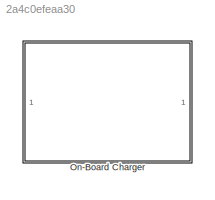
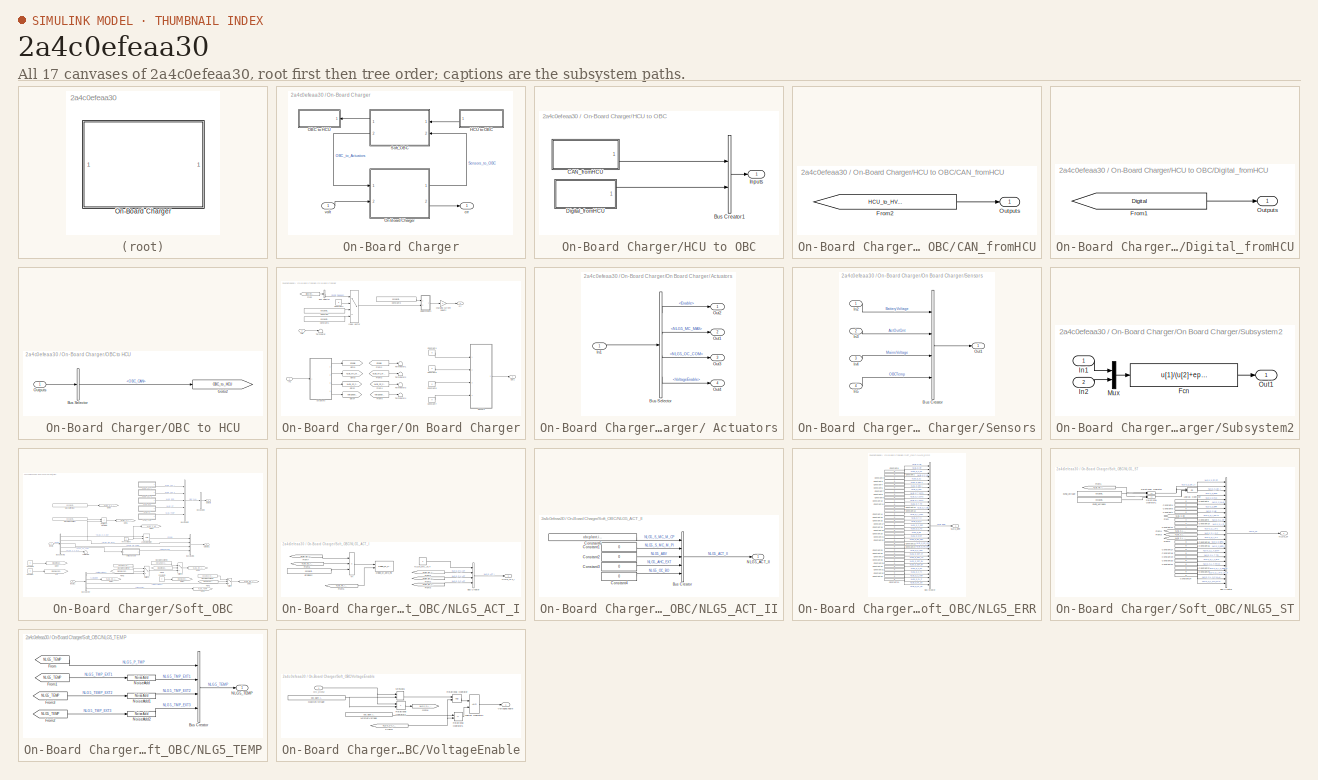
[diagram: thumbnail index - all 17 canvases of the model, root first then tree order]
MODEL slx_2a4c0efeaa30
KIND library
CONFIG AbsTol = auto
CONFIG EnableMultiTasking = off
CONFIG FixedStep = auto
CONFIG MaxStep = auto
CONFIG MinStep = auto
CONFIG RelTol = 1e-3
CONFIG SampleTimeConstraint = Unconstrained
CONFIG Solver = VariableStepAuto
CONFIG SolverName = VariableStepAuto
CONFIG StartTime = 0.0
CONFIG StopTime = 10.0
BLOCK [SubSystem] On-Board Charger
  Ports = [1, 1]
  RequestExecContextInheritance = off
  Variant = off
BLOCK [SubSystem] On-Board Charger/HCU to OBC
  Ports = [0, 1]
  RequestExecContextInheritance = off
  Variant = off
BLOCK [BusCreator] On-Board Charger/HCU to OBC/Bus Creator1
  DisplayOption = bar
  InheritFromInputs = on
  Inputs = 2
  Ports = [2, 1]
BLOCK [SubSystem] On-Board Charger/HCU to OBC/CAN_fromHCU
  Ports = [0, 1]
  RequestExecContextInheritance = off
  Variant = off
BLOCK [From] On-Board Charger/HCU to OBC/CAN_fromHCU/From2
  GotoTag = HCU_to_HV_CAN
  TagVisibility = global
BLOCK [Outport] On-Board Charger/HCU to OBC/CAN_fromHCU/Outputs
  IconDisplay = Port number
BLOCK [SubSystem] On-Board Charger/HCU to OBC/Digital_fromHCU
  Ports = [0, 1]
  RequestExecContextInheritance = off
  Variant = off
BLOCK [From] On-Board Charger/HCU to OBC/Digital_fromHCU/From1
  GotoTag = Digital
  TagVisibility = global
BLOCK [Outport] On-Board Charger/HCU to OBC/Digital_fromHCU/Outputs
  IconDisplay = Port number
BLOCK [Outport] On-Board Charger/HCU to OBC/Inputs
  IconDisplay = Port number
BLOCK [SubSystem] On-Board Charger/OBC to HCU
  Ports = [1]
  RequestExecContextInheritance = off
  Variant = off
BLOCK [BusSelector] On-Board Charger/OBC to HCU/Bus Selector
  OutputAsBus = off
  OutputSignals = OBC_CAN
  Ports = [1, 1]
BLOCK [Goto] On-Board Charger/OBC to HCU/Goto2
  GotoTag = OBC_to_HCU
  TagVisibility = global
BLOCK [Inport] On-Board Charger/OBC to HCU/Outputs
  IconDisplay = Port number
BLOCK [SubSystem] On-Board Charger/On Board Charger
  Ports = [2, 2]
  RequestExecContextInheritance = off
  Variant = off
BLOCK [SubSystem] On-Board Charger/On Board Charger/ Actuators
  Ports = [1, 4]
  RequestExecContextInheritance = off
  Variant = off
BLOCK [BusSelector] On-Board Charger/On Board Charger/ Actuators/Bus Selector
  OutputAsBus = off
  OutputSignals = Enable,NLG5_MC_MAX,NLG5_OC_COM,VoltageEnable
  Ports = [1, 4]
BLOCK [Inport] On-Board Charger/On Board Charger/ Actuators/In1
  IconDisplay = Port number
BLOCK [Outport] On-Board Charger/On Board Charger/ Actuators/Out1
  IconDisplay = Port number
  Port = 2
BLOCK [Outport] On-Board Charger/On Board Charger/ Actuators/Out2
  IconDisplay = Port number
BLOCK [Outport] On-Board Charger/On Board Charger/ Actuators/Out3
  IconDisplay = Port number
  Port = 3
BLOCK [Outport] On-Board Charger/On Board Charger/ Actuators/Out4
  IconDisplay = Port number
  Port = 4
BLOCK [BusSelector] On-Board Charger/On Board Charger/Bus Selector
  OutputAsBus = off
  OutputSignals = EVSE_Plugged
  Ports = [1, 1]
BLOCK [Constant] On-Board Charger/On Board Charger/Constant
  Value = obc.plant.init.Level1ChargerVoltage
BLOCK [Constant] On-Board Charger/On Board Charger/Constant1
  Value = obc.plant.init.Level2ChargerVoltage
BLOCK [Constant] On-Board Charger/On Board Charger/Constant2
  Value = 0
BLOCK [Constant] On-Board Charger/On Board Charger/Constant3
  Value = obc.plant.init.OutputPower
BLOCK [Constant] On-Board Charger/On Board Charger/Constant4
  Value = 0
BLOCK [Constant] On-Board Charger/On Board Charger/Constant5
  Value = 0
BLOCK [Constant] On-Board Charger/On Board Charger/Constant6
  Value = 0
BLOCK [Constant] On-Board Charger/On Board Charger/Constant7
  Value = 0
BLOCK [From] On-Board Charger/On Board Charger/From
  GotoTag = Driver_Request
  TagVisibility = global
BLOCK [From] On-Board Charger/On Board Charger/From2
  GotoTag = Enable
  TagVisibility = global
BLOCK [From] On-Board Charger/On Board Charger/From3
  GotoTag = NLG5_MC_MAX
  TagVisibility = global
BLOCK [From] On-Board Charger/On Board Charger/From4
  GotoTag = NLG5_OC_COM
  TagVisibility = global
BLOCK [From] On-Board Charger/On Board Charger/From5
  GotoTag = VoltageEnable
  TagVisibility = global
BLOCK [Goto] On-Board Charger/On Board Charger/Goto1
  GotoTag = Enable
  TagVisibility = global
BLOCK [Goto] On-Board Charger/On Board Charger/Goto2
  GotoTag = NLG5_OC_COM
  TagVisibility = global
BLOCK [Goto] On-Board Charger/On Board Charger/Goto3
  GotoTag = NLG5_MC_MAX
  TagVisibility = global
BLOCK [Goto] On-Board Charger/On Board Charger/Goto4
  GotoTag = VoltageEnable
  TagVisibility = global
BLOCK [Inport] On-Board Charger/On Board Charger/In1 
  IconDisplay = Port number
BLOCK [MultiPortSwitch] On-Board Charger/On Board Charger/Index Vector
  DataPortOrder = Zero-based contiguous
  InputSameDT = off
  Ports = [4, 1]
  SaturateOnIntegerOverflow = off
  zeroidx = on
BLOCK [Outport] On-Board Charger/On Board Charger/Out1
  IconDisplay = Port number
BLOCK [SubSystem] On-Board Charger/On Board Charger/Sensors
  Ports = [4, 1]
  RequestExecContextInheritance = off
  Variant = off
BLOCK [BusCreator] On-Board Charger/On Board Charger/Sensors/Bus Creator
  DisplayOption = bar
  InheritFromInputs = on
  Inputs = 4
  Ports = [4, 1]
BLOCK [Inport] On-Board Charger/On Board Charger/Sensors/In2
  IconDisplay = Port number
BLOCK [Inport] On-Board Charger/On Board Charger/Sensors/In3
  IconDisplay = Port number
  Port = 2
BLOCK [Inport] On-Board Charger/On Board Charger/Sensors/In4
  IconDisplay = Port number
  Port = 3
BLOCK [Inport] On-Board Charger/On Board Charger/Sensors/In5
  IconDisplay = Port number
  Port = 4
BLOCK [Outport] On-Board Charger/On Board Charger/Sensors/Out1
  IconDisplay = Port number
BLOCK [SubSystem] On-Board Charger/On Board Charger/Subsystem2
  Ports = [2, 1]
  RequestExecContextInheritance = off
  Variant = off
BLOCK [Fcn] On-Board Charger/On Board Charger/Subsystem2/Fcn
  Expr = u[1]/(u[2]+eps)*(u[2]!=0)
BLOCK [Inport] On-Board Charger/On Board Charger/Subsystem2/In1
  IconDisplay = Port number
BLOCK [Inport] On-Board Charger/On Board Charger/Subsystem2/In2
  IconDisplay = Port number
  Port = 2
BLOCK [Mux] On-Board Charger/On Board Charger/Subsystem2/Mux
  DisplayOption = bar
  Inputs = 2
  Ports = [2, 1]
BLOCK [Outport] On-Board Charger/On Board Charger/Subsystem2/Out1
  IconDisplay = Port number
BLOCK [Terminator] On-Board Charger/On Board Charger/Terminator
BLOCK [Terminator] On-Board Charger/On Board Charger/Terminator1
BLOCK [Terminator] On-Board Charger/On Board Charger/Terminator2
BLOCK [Terminator] On-Board Charger/On Board Charger/Terminator3
BLOCK [Terminator] On-Board Charger/On Board Charger/Terminator4
BLOCK [Gain] On-Board Charger/On Board Charger/charging current polarity 
  Gain = -1
  OutDataTypeStr = Inherit: Inherit via internal rule
  ParamDataTypeStr = Inherit: Inherit via internal rule
  SaturateOnIntegerOverflow = off
BLOCK [Outport] On-Board Charger/On Board Charger/crr
  IconDisplay = Port number
  Port = 2
BLOCK [Inport] On-Board Charger/On Board Charger/volt
  IconDisplay = Port number
  Port = 2
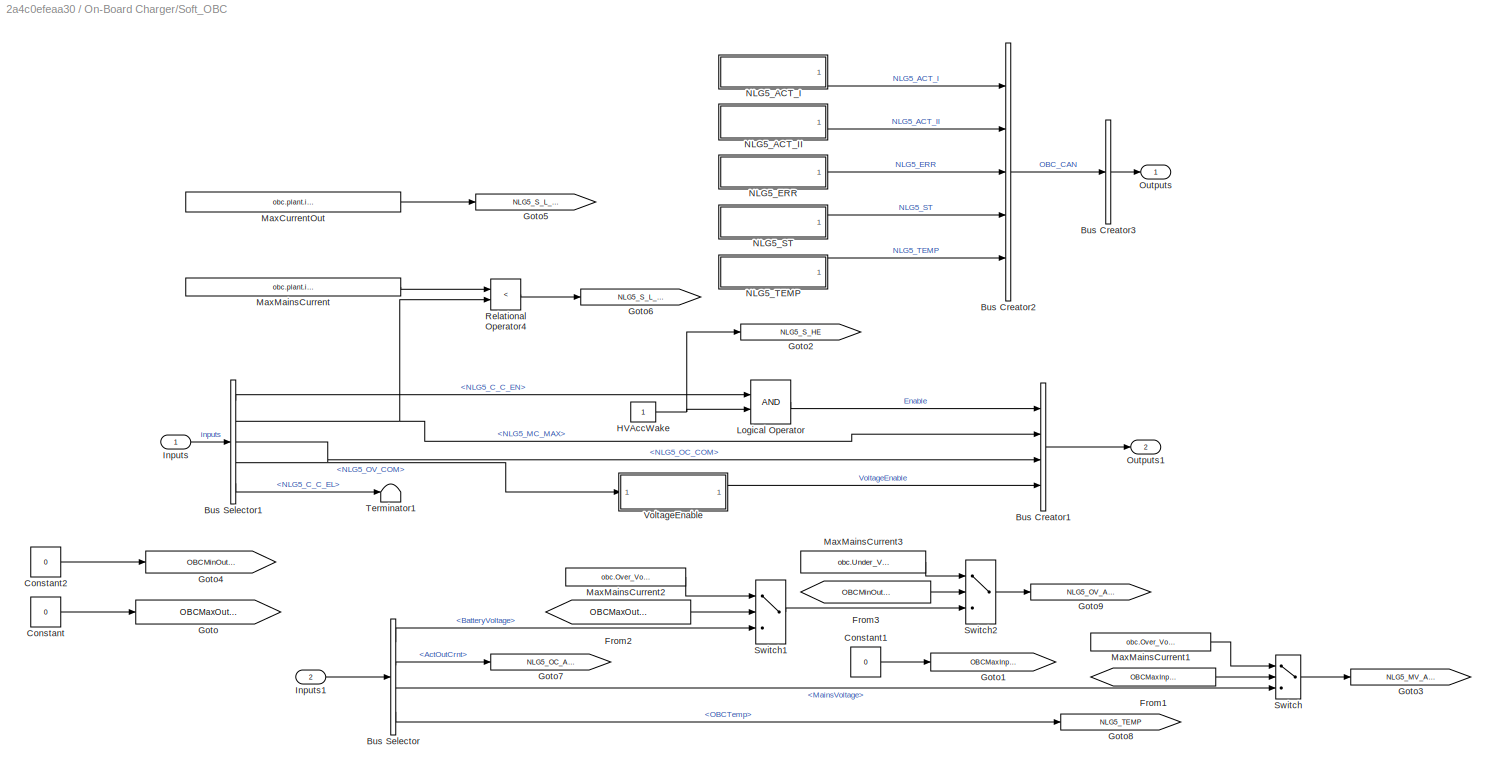
BLOCK [SubSystem] On-Board Charger/Soft_OBC
  Ports = [2, 2]
  RequestExecContextInheritance = off
  Variant = off
BLOCK [BusCreator] On-Board Charger/Soft_OBC/Bus Creator1
  DisplayOption = bar
  InheritFromInputs = on
  Inputs = 4
  Ports = [4, 1]
BLOCK [BusCreator] On-Board Charger/Soft_OBC/Bus Creator2
  DisplayOption = bar
  InheritFromInputs = on
  Inputs = 5
  Ports = [5, 1]
BLOCK [BusCreator] On-Board Charger/Soft_OBC/Bus Creator3
  DisplayOption = bar
  InheritFromInputs = on
  Inputs = 1
  Ports = [1, 1]
BLOCK [BusSelector] On-Board Charger/Soft_OBC/Bus Selector
  OutputAsBus = off
  OutputSignals = BatteryVoltage,ActOutCrnt,MainsVoltage,OBCTemp
  Ports = [1, 4]
BLOCK [BusSelector] On-Board Charger/Soft_OBC/Bus Selector1
  OutputAsBus = off
  OutputSignals = to HV_CAN.NLG5_CTL.NLG5_C_C_EN,to HV_CAN.NLG5_CTL.NLG5_MC_MAX,to HV_CAN.NLG5_CTL.NLG5_OC_COM,to HV_CAN.NLG5_CTL.NLG5_OV_COM,to HV_CAN.NLG5_CTL.NLG5_C_C_EL
  Ports = [1, 5]
BLOCK [Constant] On-Board Charger/Soft_OBC/Constant
  Value = 0
BLOCK [Constant] On-Board Charger/Soft_OBC/Constant1
  Value = 0
BLOCK [Constant] On-Board Charger/Soft_OBC/Constant2
  Value = 0
BLOCK [From] On-Board Charger/Soft_OBC/From1
  GotoTag = OBCMaxInpVlt_Fault
BLOCK [From] On-Board Charger/Soft_OBC/From2
  GotoTag = OBCMaxOutVolt_Fault
  TagVisibility = global
BLOCK [From] On-Board Charger/Soft_OBC/From3
  GotoTag = OBCMinOutVolt_Fault
BLOCK [Goto] On-Board Charger/Soft_OBC/Goto
  GotoTag = OBCMaxOutVolt_Fault
  TagVisibility = global
BLOCK [Goto] On-Board Charger/Soft_OBC/Goto1
  GotoTag = OBCMaxInpVlt_Fault
BLOCK [Goto] On-Board Charger/Soft_OBC/Goto2
  GotoTag = NLG5_S_HE
  TagVisibility = global
BLOCK [Goto] On-Board Charger/Soft_OBC/Goto3
  GotoTag = NLG5_MV_ACT
  TagVisibility = global
BLOCK [Goto] On-Board Charger/Soft_OBC/Goto4
  GotoTag = OBCMinOutVolt_Fault
BLOCK [Goto] On-Board Charger/Soft_OBC/Goto5
  GotoTag = NLG5_S_L_OC
  TagVisibility = global
BLOCK [Goto] On-Board Charger/Soft_OBC/Goto6
  GotoTag = NLG5_S_L_MC
  TagVisibility = global
BLOCK [Goto] On-Board Charger/Soft_OBC/Goto7
  GotoTag = NLG5_OC_ACT
  TagVisibility = global
BLOCK [Goto] On-Board Charger/Soft_OBC/Goto8
  GotoTag = NLG5_TEMP
  TagVisibility = global
BLOCK [Goto] On-Board Charger/Soft_OBC/Goto9
  GotoTag = NLG5_OV_ACT
  TagVisibility = global
BLOCK [Constant] On-Board Charger/Soft_OBC/HVAccWake
BLOCK [Inport] On-Board Charger/Soft_OBC/Inputs
  IconDisplay = Port number
BLOCK [Inport] On-Board Charger/Soft_OBC/Inputs1
  IconDisplay = Port number
  Port = 2
BLOCK [Logic] On-Board Charger/Soft_OBC/Logical Operator
  AllPortsSameDT = off
  OutDataTypeStr = boolean
  Ports = [2, 1]
BLOCK [Constant] On-Board Charger/Soft_OBC/MaxCurrentOut
  Value = obc.plant.init.Maximum_Current_Out
BLOCK [Constant] On-Board Charger/Soft_OBC/MaxMainsCurrent
  Value = obc.plant.init.Maximum_Mains_Current
BLOCK [Constant] On-Board Charger/Soft_OBC/MaxMainsCurrent1
  Value = obc.Over_Voltage_In
BLOCK [Constant] On-Board Charger/Soft_OBC/MaxMainsCurrent2
  Value = obc.Over_Voltage_Out
BLOCK [Constant] On-Board Charger/Soft_OBC/MaxMainsCurrent3
  Value = obc.Under_Voltage_Out
BLOCK [SubSystem] On-Board Charger/Soft_OBC/NLG5_ACT_I
  Ports = [0, 1]
  RequestExecContextInheritance = off
  Variant = off
BLOCK [BusCreator] On-Board Charger/Soft_OBC/NLG5_ACT_I/Bus Creator
  DisplayOption = bar
  InheritFromInputs = on
  Inputs = 4
  Ports = [4, 1]
BLOCK [Reference] On-Board Charger/Soft_OBC/NLG5_ACT_I/Divide_by_Zero_Fix  REF=EC2_libraries/Divide_by_Zero_Fix
  Commented = on
  Ports = [2, 1]
  SourceBlock = EC2_libraries/Divide_by_Zero_Fix
  SourceType = SubSystem
BLOCK [Constant] On-Board Charger/Soft_OBC/NLG5_ACT_I/Efficiency
  Commented = on
  Value = obc.plant.init.avergae_efficiency
BLOCK [From] On-Board Charger/Soft_OBC/NLG5_ACT_I/From1
  GotoTag = NLG5_MV_ACT
  TagVisibility = global
BLOCK [From] On-Board Charger/Soft_OBC/NLG5_ACT_I/From2
  GotoTag = NLG5_OV_ACT
  TagVisibility = global
BLOCK [From] On-Board Charger/Soft_OBC/NLG5_ACT_I/From3
  GotoTag = NLG5_OC_ACT
  TagVisibility = global
BLOCK [From] On-Board Charger/Soft_OBC/NLG5_ACT_I/From5
  Commented = on
  GotoTag = NLG5_MV_ACT
  TagVisibility = global
BLOCK [From] On-Board Charger/Soft_OBC/NLG5_ACT_I/From6
  Commented = on
  GotoTag = NLG5_OC_ACT
  TagVisibility = global
BLOCK [From] On-Board Charger/Soft_OBC/NLG5_ACT_I/From7
  Commented = on
  GotoTag = NLG5_OV_ACT
  TagVisibility = global
BLOCK [Outport] On-Board Charger/Soft_OBC/NLG5_ACT_I/NLG5_ACT_I
  IconDisplay = Port number
BLOCK [Constant] On-Board Charger/Soft_OBC/NLG5_ACT_I/NLG5_MC_ACT
BLOCK [Product] On-Board Charger/Soft_OBC/NLG5_ACT_I/V*I
  Commented = on
  InputSameDT = off
  Inputs = **/
  OutDataTypeStr = Inherit: Inherit via internal rule
  Ports = [3, 1]
  SaturateOnIntegerOverflow = off
BLOCK [SubSystem] On-Board Charger/Soft_OBC/NLG5_ACT_II
  Ports = [0, 1]
  RequestExecContextInheritance = off
  Variant = off
BLOCK [BusCreator] On-Board Charger/Soft_OBC/NLG5_ACT_II/Bus Creator
  DisplayOption = bar
  InheritFromInputs = on
  Inputs = 5
  Ports = [5, 1]
BLOCK [Constant] On-Board Charger/Soft_OBC/NLG5_ACT_II/Constant1
  Value = 0
BLOCK [Constant] On-Board Charger/Soft_OBC/NLG5_ACT_II/Constant2
  Value = 0
BLOCK [Constant] On-Board Charger/Soft_OBC/NLG5_ACT_II/Constant3
  Value = 0
BLOCK [Constant] On-Board Charger/Soft_OBC/NLG5_ACT_II/Constant4
  Value = 0
BLOCK [Constant] On-Board Charger/Soft_OBC/NLG5_ACT_II/Constant6
  Value = obc.plant.init.Maximum_Mains_Current
BLOCK [Outport] On-Board Charger/Soft_OBC/NLG5_ACT_II/NLG5_ACT_II
  IconDisplay = Port number
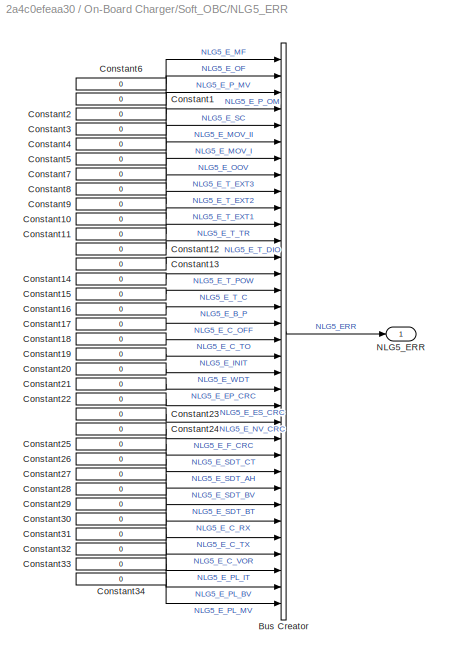
BLOCK [SubSystem] On-Board Charger/Soft_OBC/NLG5_ERR
  Ports = [0, 1]
  RequestExecContextInheritance = off
  Variant = off
BLOCK [BusCreator] On-Board Charger/Soft_OBC/NLG5_ERR/Bus Creator
  DisplayOption = bar
  InheritFromInputs = on
  Inputs = 34
  Ports = [34, 1]
BLOCK [Constant] On-Board Charger/Soft_OBC/NLG5_ERR/Constant1
  Value = 0
BLOCK [Constant] On-Board Charger/Soft_OBC/NLG5_ERR/Constant10
  Value = 0
BLOCK [Constant] On-Board Charger/Soft_OBC/NLG5_ERR/Constant11
  Value = 0
BLOCK [Constant] On-Board Charger/Soft_OBC/NLG5_ERR/Constant12
  Value = 0
BLOCK [Constant] On-Board Charger/Soft_OBC/NLG5_ERR/Constant13
  Value = 0
BLOCK [Constant] On-Board Charger/Soft_OBC/NLG5_ERR/Constant14
  Value = 0
BLOCK [Constant] On-Board Charger/Soft_OBC/NLG5_ERR/Constant15
  Value = 0
BLOCK [Constant] On-Board Charger/Soft_OBC/NLG5_ERR/Constant16
  Value = 0
BLOCK [Constant] On-Board Charger/Soft_OBC/NLG5_ERR/Constant17
  Value = 0
BLOCK [Constant] On-Board Charger/Soft_OBC/NLG5_ERR/Constant18
  Value = 0
BLOCK [Constant] On-Board Charger/Soft_OBC/NLG5_ERR/Constant19
  Value = 0
BLOCK [Constant] On-Board Charger/Soft_OBC/NLG5_ERR/Constant2
  Value = 0
BLOCK [Constant] On-Board Charger/Soft_OBC/NLG5_ERR/Constant20
  Value = 0
BLOCK [Constant] On-Board Charger/Soft_OBC/NLG5_ERR/Constant21
  Value = 0
BLOCK [Constant] On-Board Charger/Soft_OBC/NLG5_ERR/Constant22
  Value = 0
BLOCK [Constant] On-Board Charger/Soft_OBC/NLG5_ERR/Constant23
  Value = 0
BLOCK [Constant] On-Board Charger/Soft_OBC/NLG5_ERR/Constant24
  Value = 0
BLOCK [Constant] On-Board Charger/Soft_OBC/NLG5_ERR/Constant25
  Value = 0
BLOCK [Constant] On-Board Charger/Soft_OBC/NLG5_ERR/Constant26
  Value = 0
BLOCK [Constant] On-Board Charger/Soft_OBC/NLG5_ERR/Constant27
  Value = 0
BLOCK [Constant] On-Board Charger/Soft_OBC/NLG5_ERR/Constant28
  Value = 0
BLOCK [Constant] On-Board Charger/Soft_OBC/NLG5_ERR/Constant29
  Value = 0
BLOCK [Constant] On-Board Charger/Soft_OBC/NLG5_ERR/Constant3
  Value = 0
BLOCK [Constant] On-Board Charger/Soft_OBC/NLG5_ERR/Constant30
  Value = 0
BLOCK [Constant] On-Board Charger/Soft_OBC/NLG5_ERR/Constant31
  Value = 0
BLOCK [Constant] On-Board Charger/Soft_OBC/NLG5_ERR/Constant32
  Value = 0
BLOCK [Constant] On-Board Charger/Soft_OBC/NLG5_ERR/Constant33
  Value = 0
BLOCK [Constant] On-Board Charger/Soft_OBC/NLG5_ERR/Constant34
  Value = 0
BLOCK [Constant] On-Board Charger/Soft_OBC/NLG5_ERR/Constant4
  Value = 0
BLOCK [Constant] On-Board Charger/Soft_OBC/NLG5_ERR/Constant5
  Value = 0
BLOCK [Constant] On-Board Charger/Soft_OBC/NLG5_ERR/Constant6
  Value = 0
BLOCK [Constant] On-Board Charger/Soft_OBC/NLG5_ERR/Constant7
  Value = 0
BLOCK [Constant] On-Board Charger/Soft_OBC/NLG5_ERR/Constant8
  Value = 0
BLOCK [Constant] On-Board Charger/Soft_OBC/NLG5_ERR/Constant9
  Value = 0
BLOCK [Outport] On-Board Charger/Soft_OBC/NLG5_ERR/NLG5_ERR
  IconDisplay = Port number
BLOCK [SubSystem] On-Board Charger/Soft_OBC/NLG5_ST
  Ports = [0, 1]
  RequestExecContextInheritance = off
  Variant = off
BLOCK [BusCreator] On-Board Charger/Soft_OBC/NLG5_ST/Bus Creator
  DisplayOption = bar
  InheritFromInputs = on
  Inputs = 24
  Ports = [24, 1]
BLOCK [Constant] On-Board Charger/Soft_OBC/NLG5_ST/Constant10
BLOCK [Constant] On-Board Charger/Soft_OBC/NLG5_ST/Constant11
BLOCK [Constant] On-Board Charger/Soft_OBC/NLG5_ST/Constant15
  Value = 0
BLOCK [Constant] On-Board Charger/Soft_OBC/NLG5_ST/Constant16
  Value = 0
BLOCK [Constant] On-Board Charger/Soft_OBC/NLG5_ST/Constant17
  Value = 0
BLOCK [Constant] On-Board Charger/Soft_OBC/NLG5_ST/Constant18
  Value = 0
BLOCK [Constant] On-Board Charger/Soft_OBC/NLG5_ST/Constant19
  Value = 0
BLOCK [Constant] On-Board Charger/Soft_OBC/NLG5_ST/Constant20
  Value = 0
BLOCK [Constant] On-Board Charger/Soft_OBC/NLG5_ST/Constant21
  Value = 0
BLOCK [Constant] On-Board Charger/Soft_OBC/NLG5_ST/Constant22
  Value = 0
BLOCK [Constant] On-Board Charger/Soft_OBC/NLG5_ST/Constant23
  Value = 0
BLOCK [Constant] On-Board Charger/Soft_OBC/NLG5_ST/Constant24
  Value = 0
BLOCK [Constant] On-Board Charger/Soft_OBC/NLG5_ST/Constant3
  Value = 0
BLOCK [Constant] On-Board Charger/Soft_OBC/NLG5_ST/Constant4
  Value = 0
BLOCK [Constant] On-Board Charger/Soft_OBC/NLG5_ST/Constant5
  Value = 0
BLOCK [Constant] On-Board Charger/Soft_OBC/NLG5_ST/Constant7
  Value = 0
BLOCK [Constant] On-Board Charger/Soft_OBC/NLG5_ST/Constant9
BLOCK [Constant] On-Board Charger/Soft_OBC/NLG5_ST/EVSE_Voltage
  Value = obc.plant.init.Level2ChargerVoltage
BLOCK [Constant] On-Board Charger/Soft_OBC/NLG5_ST/EVSE_Voltage1
  Value = obc.plant.init.Level1ChargerVoltage
BLOCK [From] On-Board Charger/Soft_OBC/NLG5_ST/From
  GotoTag = NLG5_S_HE
  TagVisibility = global
BLOCK [From] On-Board Charger/Soft_OBC/NLG5_ST/From1
  GotoTag = NLG5_MV_ACT
  TagVisibility = global
BLOCK [From] On-Board Charger/Soft_OBC/NLG5_ST/From2
  GotoTag = NLG5_S_L_OV
  TagVisibility = global
BLOCK [From] On-Board Charger/Soft_OBC/NLG5_ST/From3
  GotoTag = NLG5_S_L_OC
  TagVisibility = global
BLOCK [From] On-Board Charger/Soft_OBC/NLG5_ST/From4
  GotoTag = NLG5_S_L_MC
  TagVisibility = global
BLOCK [Logic] On-Board Charger/Soft_OBC/NLG5_ST/Logical Operator
  AllPortsSameDT = off
  Operator = OR
  OutDataTypeStr = boolean
  Ports = [2, 1]
BLOCK [Outport] On-Board Charger/Soft_OBC/NLG5_ST/NLG5_ST
  IconDisplay = Port number
BLOCK [RelationalOperator] On-Board Charger/Soft_OBC/NLG5_ST/Relational Operator
  InputSameDT = off
  Operator = ==
  OutDataTypeStr = boolean
  Ports = [2, 1]
BLOCK [RelationalOperator] On-Board Charger/Soft_OBC/NLG5_ST/Relational Operator1
  InputSameDT = off
  Operator = ==
  OutDataTypeStr = boolean
  Ports = [2, 1]
BLOCK [SubSystem] On-Board Charger/Soft_OBC/NLG5_TEMP
  Ports = [0, 1]
  RequestExecContextInheritance = off
  Variant = off
BLOCK [BusCreator] On-Board Charger/Soft_OBC/NLG5_TEMP/Bus Creator
  DisplayOption = bar
  InheritFromInputs = on
  Inputs = 4
  Ports = [4, 1]
BLOCK [From] On-Board Charger/Soft_OBC/NLG5_TEMP/From
  GotoTag = NLG5_TEMP
  TagVisibility = global
BLOCK [From] On-Board Charger/Soft_OBC/NLG5_TEMP/From1
  GotoTag = NLG5_TEMP
  TagVisibility = global
BLOCK [From] On-Board Charger/Soft_OBC/NLG5_TEMP/From2
  GotoTag = NLG5_TEMP
  TagVisibility = global
BLOCK [From] On-Board Charger/Soft_OBC/NLG5_TEMP/From3
  GotoTag = NLG5_TEMP
  TagVisibility = global
BLOCK [Outport] On-Board Charger/Soft_OBC/NLG5_TEMP/NLG5_TEMP
  IconDisplay = Port number
BLOCK [Reference] On-Board Charger/Soft_OBC/NLG5_TEMP/NoiseAdd  REF=EC2_libraries/NoiseAdd
  Ports = [1, 1]
  SourceBlock = EC2_libraries/NoiseAdd
BLOCK [Reference] On-Board Charger/Soft_OBC/NLG5_TEMP/NoiseAdd1  REF=EC2_libraries/NoiseAdd
  Ports = [1, 1]
  SourceBlock = EC2_libraries/NoiseAdd
BLOCK [Reference] On-Board Charger/Soft_OBC/NLG5_TEMP/NoiseAdd2  REF=EC2_libraries/NoiseAdd
  Ports = [1, 1]
  SourceBlock = EC2_libraries/NoiseAdd
BLOCK [Outport] On-Board Charger/Soft_OBC/Outputs
  IconDisplay = Port number
BLOCK [Outport] On-Board Charger/Soft_OBC/Outputs1
  IconDisplay = Port number
  Port = 2
BLOCK [RelationalOperator] On-Board Charger/Soft_OBC/Relational Operator4
  InputSameDT = off
  Operator = <
  OutDataTypeStr = boolean
  Ports = [2, 1]
BLOCK [Switch] On-Board Charger/Soft_OBC/Switch
  InputSameDT = off
  SaturateOnIntegerOverflow = off
  Threshold = 1
BLOCK [Switch] On-Board Charger/Soft_OBC/Switch1
  InputSameDT = off
  SaturateOnIntegerOverflow = off
  Threshold = 1
BLOCK [Switch] On-Board Charger/Soft_OBC/Switch2
  InputSameDT = off
  SaturateOnIntegerOverflow = off
  Threshold = 1
BLOCK [Terminator] On-Board Charger/Soft_OBC/Terminator1
BLOCK [SubSystem] On-Board Charger/Soft_OBC/VoltageEnable
  Ports = [1, 1]
  RequestExecContextInheritance = off
  Variant = off
BLOCK [From] On-Board Charger/Soft_OBC/VoltageEnable/From3
  GotoTag = NLG5_OV_ACT
  TagVisibility = global
BLOCK [Goto] On-Board Charger/Soft_OBC/VoltageEnable/Goto4
  GotoTag = NLG5_S_L_OV
  TagVisibility = global
BLOCK [Logic] On-Board Charger/Soft_OBC/VoltageEnable/Logical Operator1
  AllPortsSameDT = off
  OutDataTypeStr = boolean
  Ports = [2, 1]
BLOCK [Constant] On-Board Charger/Soft_OBC/VoltageEnable/MaxOutVoltage
  Value = obc.plant.init.Maximum_Voltage_Out
BLOCK [MinMax] On-Board Charger/Soft_OBC/VoltageEnable/MinMax1
  InputSameDT = off
  Inputs = 2
  Ports = [2, 1]
  SaturateOnIntegerOverflow = off
BLOCK [Constant] On-Board Charger/Soft_OBC/VoltageEnable/MinOutVoltage
  Value = obc.plant.init.Minimum_Voltage_Out
BLOCK [Inport] On-Board Charger/Soft_OBC/VoltageEnable/OV_COM
  IconDisplay = Port number
BLOCK [RelationalOperator] On-Board Charger/Soft_OBC/VoltageEnable/Relational Operator
  InputSameDT = off
  OutDataTypeStr = boolean
  Ports = [2, 1]
BLOCK [RelationalOperator] On-Board Charger/Soft_OBC/VoltageEnable/Relational Operator1
  InputSameDT = off
  Operator = <=
  OutDataTypeStr = boolean
  Ports = [2, 1]
BLOCK [RelationalOperator] On-Board Charger/Soft_OBC/VoltageEnable/Relational Operator2
  InputSameDT = off
  Operator = >
  OutDataTypeStr = boolean
  Ports = [2, 1]
BLOCK [Outport] On-Board Charger/Soft_OBC/VoltageEnable/VoltageEnable
  IconDisplay = Port number
BLOCK [Outport] On-Board Charger/crr
  IconDisplay = Port number
BLOCK [Inport] On-Board Charger/volt
  IconDisplay = Port number
LINE On-Board Charger/HCU to OBC/Bus Creator1:1 -> On-Board Charger/HCU to OBC/Inputs:1
LINE On-Board Charger/HCU to OBC/CAN_fromHCU/From2:1 -> On-Board Charger/HCU to OBC/CAN_fromHCU/Outputs:1
LINE On-Board Charger/HCU to OBC/CAN_fromHCU:1 -> On-Board Charger/HCU to OBC/Bus Creator1:1
LINE On-Board Charger/HCU to OBC/Digital_fromHCU/From1:1 -> On-Board Charger/HCU to OBC/Digital_fromHCU/Outputs:1
LINE On-Board Charger/HCU to OBC/Digital_fromHCU:1 -> On-Board Charger/HCU to OBC/Bus Creator1:2
LINE On-Board Charger/HCU to OBC:1 -> On-Board Charger/Soft_OBC:1
LINE On-Board Charger/OBC to HCU/Bus Selector:1 -> On-Board Charger/OBC to HCU/Goto2:1
LINE On-Board Charger/OBC to HCU/Outputs:1 -> On-Board Charger/OBC to HCU/Bus Selector:1
LINE On-Board Charger/On Board Charger/ Actuators/Bus Selector:1 -> On-Board Charger/On Board Charger/ Actuators/Out2:1
LINE On-Board Charger/On Board Charger/ Actuators/Bus Selector:2 -> On-Board Charger/On Board Charger/ Actuators/Out1:1
LINE On-Board Charger/On Board Charger/ Actuators/Bus Selector:3 -> On-Board Charger/On Board Charger/ Actuators/Out3:1
LINE On-Board Charger/On Board Charger/ Actuators/Bus Selector:4 -> On-Board Charger/On Board Charger/ Actuators/Out4:1
LINE On-Board Charger/On Board Charger/ Actuators/In1:1 -> On-Board Charger/On Board Charger/ Actuators/Bus Selector:1
LINE On-Board Charger/On Board Charger/ Actuators:1 -> On-Board Charger/On Board Charger/Goto1:1
LINE On-Board Charger/On Board Charger/ Actuators:2 -> On-Board Charger/On Board Charger/Goto3:1
LINE On-Board Charger/On Board Charger/ Actuators:3 -> On-Board Charger/On Board Charger/Goto2:1
LINE On-Board Charger/On Board Charger/ Actuators:4 -> On-Board Charger/On Board Charger/Goto4:1
LINE On-Board Charger/On Board Charger/Bus Selector:1 -> On-Board Charger/On Board Charger/Index Vector:1
LINE On-Board Charger/On Board Charger/Constant1:1 -> On-Board Charger/On Board Charger/Index Vector:4
LINE On-Board Charger/On Board Charger/Constant2:1 -> On-Board Charger/On Board Charger/Index Vector:2
LINE On-Board Charger/On Board Charger/Constant3:1 -> On-Board Charger/On Board Charger/Subsystem2:1
LINE On-Board Charger/On Board Charger/Constant4:1 -> On-Board Charger/On Board Charger/Sensors:1
LINE On-Board Charger/On Board Charger/Constant5:1 -> On-Board Charger/On Board Charger/Sensors:2
LINE On-Board Charger/On Board Charger/Constant6:1 -> On-Board Charger/On Board Charger/Sensors:3
LINE On-Board Charger/On Board Charger/Constant7:1 -> On-Board Charger/On Board Charger/Sensors:4
LINE On-Board Charger/On Board Charger/Constant:1 -> On-Board Charger/On Board Charger/Index Vector:3
LINE On-Board Charger/On Board Charger/From2:1 -> On-Board Charger/On Board Charger/Terminator1:1
LINE On-Board Charger/On Board Charger/From3:1 -> On-Board Charger/On Board Charger/Terminator2:1
LINE On-Board Charger/On Board Charger/From4:1 -> On-Board Charger/On Board Charger/Terminator3:1
LINE On-Board Charger/On Board Charger/From5:1 -> On-Board Charger/On Board Charger/Terminator4:1
LINE On-Board Charger/On Board Charger/From:1 -> On-Board Charger/On Board Charger/Bus Selector:1
LINE On-Board Charger/On Board Charger/In1 :1 -> On-Board Charger/On Board Charger/ Actuators:1
LINE On-Board Charger/On Board Charger/Index Vector:1 -> On-Board Charger/On Board Charger/Subsystem2:2
LINE On-Board Charger/On Board Charger/Sensors/Bus Creator:1 -> On-Board Charger/On Board Charger/Sensors/Out1:1
LINE On-Board Charger/On Board Charger/Sensors/In2:1 -> On-Board Charger/On Board Charger/Sensors/Bus Creator:1
LINE On-Board Charger/On Board Charger/Sensors/In3:1 -> On-Board Charger/On Board Charger/Sensors/Bus Creator:2
LINE On-Board Charger/On Board Charger/Sensors/In4:1 -> On-Board Charger/On Board Charger/Sensors/Bus Creator:3
LINE On-Board Charger/On Board Charger/Sensors/In5:1 -> On-Board Charger/On Board Charger/Sensors/Bus Creator:4
LINE On-Board Charger/On Board Charger/Sensors:1 -> On-Board Charger/On Board Charger/Out1:1
LINE On-Board Charger/On Board Charger/Subsystem2/Fcn:1 -> On-Board Charger/On Board Charger/Subsystem2/Out1:1
LINE On-Board Charger/On Board Charger/Subsystem2/In1:1 -> On-Board Charger/On Board Charger/Subsystem2/Mux:1
LINE On-Board Charger/On Board Charger/Subsystem2/In2:1 -> On-Board Charger/On Board Charger/Subsystem2/Mux:2
LINE On-Board Charger/On Board Charger/Subsystem2/Mux:1 -> On-Board Charger/On Board Charger/Subsystem2/Fcn:1
LINE On-Board Charger/On Board Charger/Subsystem2:1 -> On-Board Charger/On Board Charger/charging current polarity :1
LINE On-Board Charger/On Board Charger/charging current polarity :1 -> On-Board Charger/On Board Charger/crr:1
LINE On-Board Charger/On Board Charger/volt:1 -> On-Board Charger/On Board Charger/Terminator:1
LINE On-Board Charger/On Board Charger:1 -> On-Board Charger/Soft_OBC:2
LINE On-Board Charger/On Board Charger:2 -> On-Board Charger/crr:1
LINE On-Board Charger/Soft_OBC/Bus Creator1:1 -> On-Board Charger/Soft_OBC/Outputs1:1
LINE On-Board Charger/Soft_OBC/Bus Creator2:1 -> On-Board Charger/Soft_OBC/Bus Creator3:1
LINE On-Board Charger/Soft_OBC/Bus Creator3:1 -> On-Board Charger/Soft_OBC/Outputs:1
LINE On-Board Charger/Soft_OBC/Bus Selector1:1 -> On-Board Charger/Soft_OBC/Logical Operator:1
NET On-Board Charger/Soft_OBC/Bus Selector1:2 -> On-Board Charger/Soft_OBC/Bus Creator1:2, On-Board Charger/Soft_OBC/Relational Operator4:2
LINE On-Board Charger/Soft_OBC/Bus Selector1:3 -> On-Board Charger/Soft_OBC/Bus Creator1:3
LINE On-Board Charger/Soft_OBC/Bus Selector1:4 -> On-Board Charger/Soft_OBC/VoltageEnable:1
LINE On-Board Charger/Soft_OBC/Bus Selector1:5 -> On-Board Charger/Soft_OBC/Terminator1:1
LINE On-Board Charger/Soft_OBC/Bus Selector:1 -> On-Board Charger/Soft_OBC/Switch1:3
LINE On-Board Charger/Soft_OBC/Bus Selector:2 -> On-Board Charger/Soft_OBC/Goto7:1
LINE On-Board Charger/Soft_OBC/Bus Selector:3 -> On-Board Charger/Soft_OBC/Switch:3
LINE On-Board Charger/Soft_OBC/Bus Selector:4 -> On-Board Charger/Soft_OBC/Goto8:1
LINE On-Board Charger/Soft_OBC/Constant1:1 -> On-Board Charger/Soft_OBC/Goto1:1
LINE On-Board Charger/Soft_OBC/Constant2:1 -> On-Board Charger/Soft_OBC/Goto4:1
LINE On-Board Charger/Soft_OBC/Constant:1 -> On-Board Charger/Soft_OBC/Goto:1
LINE On-Board Charger/Soft_OBC/From1:1 -> On-Board Charger/Soft_OBC/Switch:2
LINE On-Board Charger/Soft_OBC/From2:1 -> On-Board Charger/Soft_OBC/Switch1:2
LINE On-Board Charger/Soft_OBC/From3:1 -> On-Board Charger/Soft_OBC/Switch2:2
NET On-Board Charger/Soft_OBC/HVAccWake:1 -> On-Board Charger/Soft_OBC/Goto2:1, On-Board Charger/Soft_OBC/Logical Operator:2
LINE On-Board Charger/Soft_OBC/Inputs1:1 -> On-Board Charger/Soft_OBC/Bus Selector:1
LINE On-Board Charger/Soft_OBC/Inputs:1 -> On-Board Charger/Soft_OBC/Bus Selector1:1
LINE On-Board Charger/Soft_OBC/Logical Operator:1 -> On-Board Charger/Soft_OBC/Bus Creator1:1
LINE On-Board Charger/Soft_OBC/MaxCurrentOut:1 -> On-Board Charger/Soft_OBC/Goto5:1
LINE On-Board Charger/Soft_OBC/MaxMainsCurrent1:1 -> On-Board Charger/Soft_OBC/Switch:1
LINE On-Board Charger/Soft_OBC/MaxMainsCurrent2:1 -> On-Board Charger/Soft_OBC/Switch1:1
LINE On-Board Charger/Soft_OBC/MaxMainsCurrent3:1 -> On-Board Charger/Soft_OBC/Switch2:1
LINE On-Board Charger/Soft_OBC/MaxMainsCurrent:1 -> On-Board Charger/Soft_OBC/Relational Operator4:1
LINE On-Board Charger/Soft_OBC/NLG5_ACT_I/Bus Creator:1 -> On-Board Charger/Soft_OBC/NLG5_ACT_I/NLG5_ACT_I:1
LINE On-Board Charger/Soft_OBC/NLG5_ACT_I/Efficiency:1 -> On-Board Charger/Soft_OBC/NLG5_ACT_I/V*I:3
LINE On-Board Charger/Soft_OBC/NLG5_ACT_I/From1:1 -> On-Board Charger/Soft_OBC/NLG5_ACT_I/Bus Creator:2
LINE On-Board Charger/Soft_OBC/NLG5_ACT_I/From2:1 -> On-Board Charger/Soft_OBC/NLG5_ACT_I/Bus Creator:3
LINE On-Board Charger/Soft_OBC/NLG5_ACT_I/From3:1 -> On-Board Charger/Soft_OBC/NLG5_ACT_I/Bus Creator:4
LINE On-Board Charger/Soft_OBC/NLG5_ACT_I/From5:1 -> On-Board Charger/Soft_OBC/NLG5_ACT_I/Divide_by_Zero_Fix:2
LINE On-Board Charger/Soft_OBC/NLG5_ACT_I/From6:1 -> On-Board Charger/Soft_OBC/NLG5_ACT_I/V*I:2
LINE On-Board Charger/Soft_OBC/NLG5_ACT_I/From7:1 -> On-Board Charger/Soft_OBC/NLG5_ACT_I/V*I:1
LINE On-Board Charger/Soft_OBC/NLG5_ACT_I/NLG5_MC_ACT:1 -> On-Board Charger/Soft_OBC/NLG5_ACT_I/Bus Creator:1
LINE On-Board Charger/Soft_OBC/NLG5_ACT_I/V*I:1 -> On-Board Charger/Soft_OBC/NLG5_ACT_I/Divide_by_Zero_Fix:1
LINE On-Board Charger/Soft_OBC/NLG5_ACT_I:1 -> On-Board Charger/Soft_OBC/Bus Creator2:1
LINE On-Board Charger/Soft_OBC/NLG5_ACT_II/Bus Creator:1 -> On-Board Charger/Soft_OBC/NLG5_ACT_II/NLG5_ACT_II:1
LINE On-Board Charger/Soft_OBC/NLG5_ACT_II/Constant1:1 -> On-Board Charger/Soft_OBC/NLG5_ACT_II/Bus Creator:2
LINE On-Board Charger/Soft_OBC/NLG5_ACT_II/Constant2:1 -> On-Board Charger/Soft_OBC/NLG5_ACT_II/Bus Creator:3
LINE On-Board Charger/Soft_OBC/NLG5_ACT_II/Constant3:1 -> On-Board Charger/Soft_OBC/NLG5_ACT_II/Bus Creator:4
LINE On-Board Charger/Soft_OBC/NLG5_ACT_II/Constant4:1 -> On-Board Charger/Soft_OBC/NLG5_ACT_II/Bus Creator:5
LINE On-Board Charger/Soft_OBC/NLG5_ACT_II/Constant6:1 -> On-Board Charger/Soft_OBC/NLG5_ACT_II/Bus Creator:1
LINE On-Board Charger/Soft_OBC/NLG5_ACT_II:1 -> On-Board Charger/Soft_OBC/Bus Creator2:2
LINE On-Board Charger/Soft_OBC/NLG5_ERR/Bus Creator:1 -> On-Board Charger/Soft_OBC/NLG5_ERR/NLG5_ERR:1
LINE On-Board Charger/Soft_OBC/NLG5_ERR/Constant10:1 -> On-Board Charger/Soft_OBC/NLG5_ERR/Bus Creator:10
LINE On-Board Charger/Soft_OBC/NLG5_ERR/Constant11:1 -> On-Board Charger/Soft_OBC/NLG5_ERR/Bus Creator:11
LINE On-Board Charger/Soft_OBC/NLG5_ERR/Constant12:1 -> On-Board Charger/Soft_OBC/NLG5_ERR/Bus Creator:12
LINE On-Board Charger/Soft_OBC/NLG5_ERR/Constant13:1 -> On-Board Charger/Soft_OBC/NLG5_ERR/Bus Creator:13
LINE On-Board Charger/Soft_OBC/NLG5_ERR/Constant14:1 -> On-Board Charger/Soft_OBC/NLG5_ERR/Bus Creator:14
LINE On-Board Charger/Soft_OBC/NLG5_ERR/Constant15:1 -> On-Board Charger/Soft_OBC/NLG5_ERR/Bus Creator:15
LINE On-Board Charger/Soft_OBC/NLG5_ERR/Constant16:1 -> On-Board Charger/Soft_OBC/NLG5_ERR/Bus Creator:16
LINE On-Board Charger/Soft_OBC/NLG5_ERR/Constant17:1 -> On-Board Charger/Soft_OBC/NLG5_ERR/Bus Creator:17
LINE On-Board Charger/Soft_OBC/NLG5_ERR/Constant18:1 -> On-Board Charger/Soft_OBC/NLG5_ERR/Bus Creator:18
LINE On-Board Charger/Soft_OBC/NLG5_ERR/Constant19:1 -> On-Board Charger/Soft_OBC/NLG5_ERR/Bus Creator:19
LINE On-Board Charger/Soft_OBC/NLG5_ERR/Constant1:1 -> On-Board Charger/Soft_OBC/NLG5_ERR/Bus Creator:2
LINE On-Board Charger/Soft_OBC/NLG5_ERR/Constant20:1 -> On-Board Charger/Soft_OBC/NLG5_ERR/Bus Creator:20
LINE On-Board Charger/Soft_OBC/NLG5_ERR/Constant21:1 -> On-Board Charger/Soft_OBC/NLG5_ERR/Bus Creator:21
LINE On-Board Charger/Soft_OBC/NLG5_ERR/Constant22:1 -> On-Board Charger/Soft_OBC/NLG5_ERR/Bus Creator:22
LINE On-Board Charger/Soft_OBC/NLG5_ERR/Constant23:1 -> On-Board Charger/Soft_OBC/NLG5_ERR/Bus Creator:23
LINE On-Board Charger/Soft_OBC/NLG5_ERR/Constant24:1 -> On-Board Charger/Soft_OBC/NLG5_ERR/Bus Creator:24
LINE On-Board Charger/Soft_OBC/NLG5_ERR/Constant25:1 -> On-Board Charger/Soft_OBC/NLG5_ERR/Bus Creator:25
LINE On-Board Charger/Soft_OBC/NLG5_ERR/Constant26:1 -> On-Board Charger/Soft_OBC/NLG5_ERR/Bus Creator:26
LINE On-Board Charger/Soft_OBC/NLG5_ERR/Constant27:1 -> On-Board Charger/Soft_OBC/NLG5_ERR/Bus Creator:27
LINE On-Board Charger/Soft_OBC/NLG5_ERR/Constant28:1 -> On-Board Charger/Soft_OBC/NLG5_ERR/Bus Creator:28
LINE On-Board Charger/Soft_OBC/NLG5_ERR/Constant29:1 -> On-Board Charger/Soft_OBC/NLG5_ERR/Bus Creator:29
LINE On-Board Charger/Soft_OBC/NLG5_ERR/Constant2:1 -> On-Board Charger/Soft_OBC/NLG5_ERR/Bus Creator:3
LINE On-Board Charger/Soft_OBC/NLG5_ERR/Constant30:1 -> On-Board Charger/Soft_OBC/NLG5_ERR/Bus Creator:30
LINE On-Board Charger/Soft_OBC/NLG5_ERR/Constant31:1 -> On-Board Charger/Soft_OBC/NLG5_ERR/Bus Creator:31
LINE On-Board Charger/Soft_OBC/NLG5_ERR/Constant32:1 -> On-Board Charger/Soft_OBC/NLG5_ERR/Bus Creator:32
LINE On-Board Charger/Soft_OBC/NLG5_ERR/Constant33:1 -> On-Board Charger/Soft_OBC/NLG5_ERR/Bus Creator:33
LINE On-Board Charger/Soft_OBC/NLG5_ERR/Constant34:1 -> On-Board Charger/Soft_OBC/NLG5_ERR/Bus Creator:34
LINE On-Board Charger/Soft_OBC/NLG5_ERR/Constant3:1 -> On-Board Charger/Soft_OBC/NLG5_ERR/Bus Creator:4
LINE On-Board Charger/Soft_OBC/NLG5_ERR/Constant4:1 -> On-Board Charger/Soft_OBC/NLG5_ERR/Bus Creator:5
LINE On-Board Charger/Soft_OBC/NLG5_ERR/Constant5:1 -> On-Board Charger/Soft_OBC/NLG5_ERR/Bus Creator:6
LINE On-Board Charger/Soft_OBC/NLG5_ERR/Constant6:1 -> On-Board Charger/Soft_OBC/NLG5_ERR/Bus Creator:1
LINE On-Board Charger/Soft_OBC/NLG5_ERR/Constant7:1 -> On-Board Charger/Soft_OBC/NLG5_ERR/Bus Creator:7
LINE On-Board Charger/Soft_OBC/NLG5_ERR/Constant8:1 -> On-Board Charger/Soft_OBC/NLG5_ERR/Bus Creator:8
LINE On-Board Charger/Soft_OBC/NLG5_ERR/Constant9:1 -> On-Board Charger/Soft_OBC/NLG5_ERR/Bus Creator:9
LINE On-Board Charger/Soft_OBC/NLG5_ERR:1 -> On-Board Charger/Soft_OBC/Bus Creator2:3
LINE On-Board Charger/Soft_OBC/NLG5_ST/Bus Creator:1 -> On-Board Charger/Soft_OBC/NLG5_ST/NLG5_ST:1
LINE On-Board Charger/Soft_OBC/NLG5_ST/Constant10:1 -> On-Board Charger/Soft_OBC/NLG5_ST/Bus Creator:10
LINE On-Board Charger/Soft_OBC/NLG5_ST/Constant11:1 -> On-Board Charger/Soft_OBC/NLG5_ST/Bus Creator:11
LINE On-Board Charger/Soft_OBC/NLG5_ST/Constant15:1 -> On-Board Charger/Soft_OBC/NLG5_ST/Bus Creator:15
LINE On-Board Charger/Soft_OBC/NLG5_ST/Constant16:1 -> On-Board Charger/Soft_OBC/NLG5_ST/Bus Creator:16
LINE On-Board Charger/Soft_OBC/NLG5_ST/Constant17:1 -> On-Board Charger/Soft_OBC/NLG5_ST/Bus Creator:17
LINE On-Board Charger/Soft_OBC/NLG5_ST/Constant18:1 -> On-Board Charger/Soft_OBC/NLG5_ST/Bus Creator:18
LINE On-Board Charger/Soft_OBC/NLG5_ST/Constant19:1 -> On-Board Charger/Soft_OBC/NLG5_ST/Bus Creator:19
LINE On-Board Charger/Soft_OBC/NLG5_ST/Constant20:1 -> On-Board Charger/Soft_OBC/NLG5_ST/Bus Creator:20
LINE On-Board Charger/Soft_OBC/NLG5_ST/Constant21:1 -> On-Board Charger/Soft_OBC/NLG5_ST/Bus Creator:21
LINE On-Board Charger/Soft_OBC/NLG5_ST/Constant22:1 -> On-Board Charger/Soft_OBC/NLG5_ST/Bus Creator:22
LINE On-Board Charger/Soft_OBC/NLG5_ST/Constant23:1 -> On-Board Charger/Soft_OBC/NLG5_ST/Bus Creator:23
LINE On-Board Charger/Soft_OBC/NLG5_ST/Constant24:1 -> On-Board Charger/Soft_OBC/NLG5_ST/Bus Creator:24
LINE On-Board Charger/Soft_OBC/NLG5_ST/Constant3:1 -> On-Board Charger/Soft_OBC/NLG5_ST/Bus Creator:4
LINE On-Board Charger/Soft_OBC/NLG5_ST/Constant4:1 -> On-Board Charger/Soft_OBC/NLG5_ST/Bus Creator:5
LINE On-Board Charger/Soft_OBC/NLG5_ST/Constant5:1 -> On-Board Charger/Soft_OBC/NLG5_ST/Bus Creator:6
LINE On-Board Charger/Soft_OBC/NLG5_ST/Constant7:1 -> On-Board Charger/Soft_OBC/NLG5_ST/Bus Creator:7
LINE On-Board Charger/Soft_OBC/NLG5_ST/Constant9:1 -> On-Board Charger/Soft_OBC/NLG5_ST/Bus Creator:9
LINE On-Board Charger/Soft_OBC/NLG5_ST/EVSE_Voltage1:1 -> On-Board Charger/Soft_OBC/NLG5_ST/Relational Operator1:2
LINE On-Board Charger/Soft_OBC/NLG5_ST/EVSE_Voltage:1 -> On-Board Charger/Soft_OBC/NLG5_ST/Relational Operator:2
NET On-Board Charger/Soft_OBC/NLG5_ST/From1:1 -> On-Board Charger/Soft_OBC/NLG5_ST/Relational Operator1:1, On-Board Charger/Soft_OBC/NLG5_ST/Relational Operator:1
LINE On-Board Charger/Soft_OBC/NLG5_ST/From2:1 -> On-Board Charger/Soft_OBC/NLG5_ST/Bus Creator:14
LINE On-Board Charger/Soft_OBC/NLG5_ST/From3:1 -> On-Board Charger/Soft_OBC/NLG5_ST/Bus Creator:13
LINE On-Board Charger/Soft_OBC/NLG5_ST/From4:1 -> On-Board Charger/Soft_OBC/NLG5_ST/Bus Creator:12
LINE On-Board Charger/Soft_OBC/NLG5_ST/From:1 -> On-Board Charger/Soft_OBC/NLG5_ST/Bus Creator:8
LINE On-Board Charger/Soft_OBC/NLG5_ST/Logical Operator:1 -> On-Board Charger/Soft_OBC/NLG5_ST/Bus Creator:1
NET On-Board Charger/Soft_OBC/NLG5_ST/Relational Operator1:1 -> On-Board Charger/Soft_OBC/NLG5_ST/Bus Creator:3, On-Board Charger/Soft_OBC/NLG5_ST/Logical Operator:2
NET On-Board Charger/Soft_OBC/NLG5_ST/Relational Operator:1 -> On-Board Charger/Soft_OBC/NLG5_ST/Bus Creator:2, On-Board Charger/Soft_OBC/NLG5_ST/Logical Operator:1
LINE On-Board Charger/Soft_OBC/NLG5_ST:1 -> On-Board Charger/Soft_OBC/Bus Creator2:4
LINE On-Board Charger/Soft_OBC/NLG5_TEMP/Bus Creator:1 -> On-Board Charger/Soft_OBC/NLG5_TEMP/NLG5_TEMP:1
LINE On-Board Charger/Soft_OBC/NLG5_TEMP/From1:1 -> On-Board Charger/Soft_OBC/NLG5_TEMP/NoiseAdd:1
LINE On-Board Charger/Soft_OBC/NLG5_TEMP/From2:1 -> On-Board Charger/Soft_OBC/NLG5_TEMP/NoiseAdd2:1
LINE On-Board Charger/Soft_OBC/NLG5_TEMP/From3:1 -> On-Board Charger/Soft_OBC/NLG5_TEMP/NoiseAdd1:1
LINE On-Board Charger/Soft_OBC/NLG5_TEMP/From:1 -> On-Board Charger/Soft_OBC/NLG5_TEMP/Bus Creator:1
LINE On-Board Charger/Soft_OBC/NLG5_TEMP/NoiseAdd1:1 -> On-Board Charger/Soft_OBC/NLG5_TEMP/Bus Creator:3
LINE On-Board Charger/Soft_OBC/NLG5_TEMP/NoiseAdd2:1 -> On-Board Charger/Soft_OBC/NLG5_TEMP/Bus Creator:4
LINE On-Board Charger/Soft_OBC/NLG5_TEMP/NoiseAdd:1 -> On-Board Charger/Soft_OBC/NLG5_TEMP/Bus Creator:2
LINE On-Board Charger/Soft_OBC/NLG5_TEMP:1 -> On-Board Charger/Soft_OBC/Bus Creator2:5
LINE On-Board Charger/Soft_OBC/Relational Operator4:1 -> On-Board Charger/Soft_OBC/Goto6:1
LINE On-Board Charger/Soft_OBC/Switch1:1 -> On-Board Charger/Soft_OBC/Switch2:3
LINE On-Board Charger/Soft_OBC/Switch2:1 -> On-Board Charger/Soft_OBC/Goto9:1
LINE On-Board Charger/Soft_OBC/Switch:1 -> On-Board Charger/Soft_OBC/Goto3:1
NET On-Board Charger/Soft_OBC/VoltageEnable/From3:1 -> On-Board Charger/Soft_OBC/VoltageEnable/Relational Operator1:2, On-Board Charger/Soft_OBC/VoltageEnable/Relational Operator:2
LINE On-Board Charger/Soft_OBC/VoltageEnable/Logical Operator1:1 -> On-Board Charger/Soft_OBC/VoltageEnable/VoltageEnable:1
NET On-Board Charger/Soft_OBC/VoltageEnable/MaxOutVoltage:1 -> On-Board Charger/Soft_OBC/VoltageEnable/MinMax1:2, On-Board Charger/Soft_OBC/VoltageEnable/Relational Operator2:2
LINE On-Board Charger/Soft_OBC/VoltageEnable/MinMax1:1 -> On-Board Charger/Soft_OBC/VoltageEnable/Relational Operator:1
LINE On-Board Charger/Soft_OBC/VoltageEnable/MinOutVoltage:1 -> On-Board Charger/Soft_OBC/VoltageEnable/Relational Operator1:1
NET On-Board Charger/Soft_OBC/VoltageEnable/OV_COM:1 -> On-Board Charger/Soft_OBC/VoltageEnable/MinMax1:1, On-Board Charger/Soft_OBC/VoltageEnable/Relational Operator2:1
LINE On-Board Charger/Soft_OBC/VoltageEnable/Relational Operator1:1 -> On-Board Charger/Soft_OBC/VoltageEnable/Logical Operator1:2
LINE On-Board Charger/Soft_OBC/VoltageEnable/Relational Operator2:1 -> On-Board Charger/Soft_OBC/VoltageEnable/Goto4:1
LINE On-Board Charger/Soft_OBC/VoltageEnable/Relational Operator:1 -> On-Board Charger/Soft_OBC/VoltageEnable/Logical Operator1:1
LINE On-Board Charger/Soft_OBC/VoltageEnable:1 -> On-Board Charger/Soft_OBC/Bus Creator1:4
LINE On-Board Charger/Soft_OBC:1 -> On-Board Charger/OBC to HCU:1
LINE On-Board Charger/Soft_OBC:2 -> On-Board Charger/On Board Charger:1
LINE On-Board Charger/volt:1 -> On-Board Charger/On Board Charger:2
note: NET lines group one-source signal fan-out (src -> all destinations, sorted); 1:1 wires keep LINE
